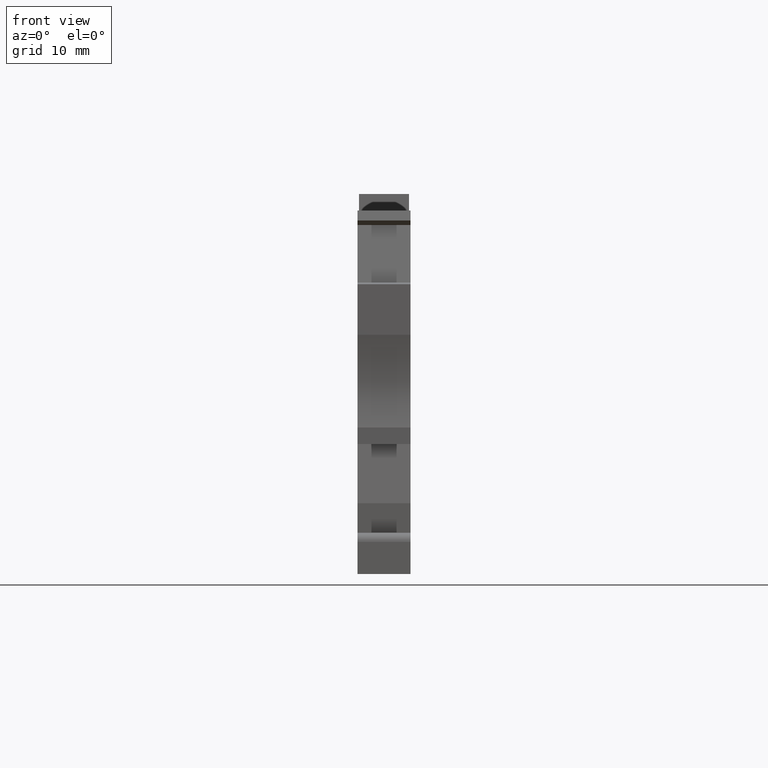
[diagram: clean part render]
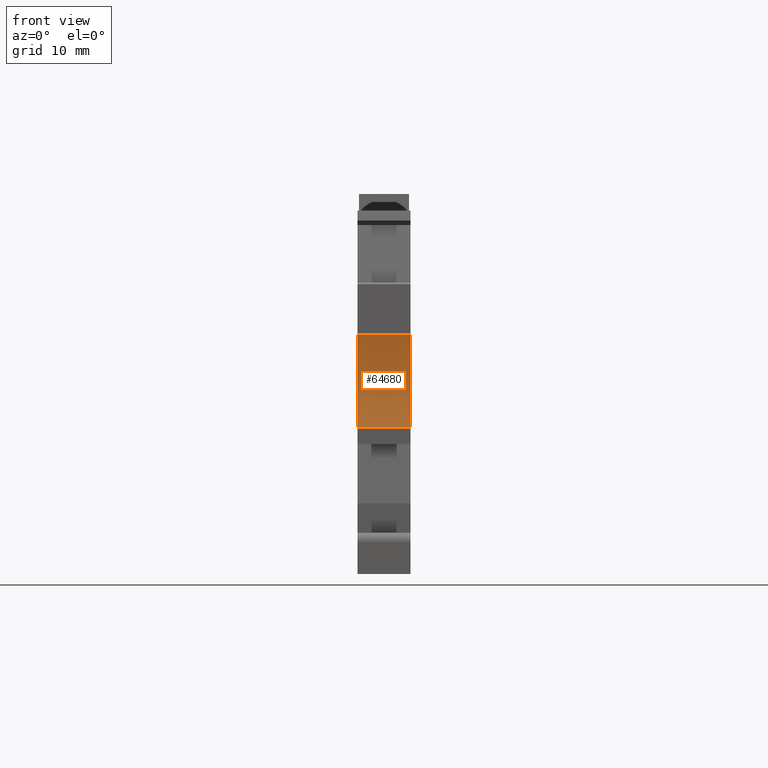
[diagram: same view with one face highlighted and labeled with its STEP entity id]
A machine part, front view. The second image highlights one B-rep face of the part: STEP entity #64680.
In plain terms, the highlighted cylindrical surface (partial cylindrical patch) has radius 15 mm, axis along (1, 0, 0).
Its self-contained STEP definition (entity closure, byte-faithful):
#8130=CARTESIAN_POINT('',(-22.3678327783245,-21.2000000000028,
53.6700000000021));
#8140=VERTEX_POINT('',#8130);
#8170=CARTESIAN_POINT('',(-22.3678327783245,-21.2000000000028,53.67));
#8180=DIRECTION('',(0.,0.,-1.));
#8190=VECTOR('',#8180,1.);
#8200=LINE('',#8170,#8190);
#8210=CARTESIAN_POINT('',(-22.3678327783245,-21.2000000000028,
48.5199999999973));
#8220=VERTEX_POINT('',#8210);
#8230=EDGE_CURVE('',#8140,#8220,#8200,.T.);
#22920=CARTESIAN_POINT('',(-22.3678327783245,-30.2000000000027,
53.669999999997));
#22930=VERTEX_POINT('',#22920);
#22960=CARTESIAN_POINT('',(-36.6769207995787,-25.7000000000028,
53.6699999999978));
#22970=DIRECTION('',(0.,0.,1.));
#22980=DIRECTION('',(1.,0.,0.));
#22990=AXIS2_PLACEMENT_3D('',#22960,#22970,#22980);
#23000=CIRCLE('',#22990,15.);
#23010=EDGE_CURVE('',#22930,#8140,#23000,.T.);
#53290=CARTESIAN_POINT('',(-36.6769207995787,-25.7000000000028,
48.5199999999973));
#53300=DIRECTION('',(0.,0.,1.));
#53310=DIRECTION('',(1.,0.,0.));
#53320=AXIS2_PLACEMENT_3D('',#53290,#53300,#53310);
#53330=CIRCLE('',#53320,15.);
#53340=CARTESIAN_POINT('',(-22.3678327783245,-30.2000000000028,
48.5199999999973));
#53350=VERTEX_POINT('',#53340);
#53360=EDGE_CURVE('',#53350,#8220,#53330,.T.);
#64060=CARTESIAN_POINT('',(-22.3678327783245,-30.2000000000027,53.67));
#64070=DIRECTION('',(0.,0.,-1.));
#64080=VECTOR('',#64070,1.);
#64090=LINE('',#64060,#64080);
#64100=EDGE_CURVE('',#22930,#53350,#64090,.T.);
#64570=CARTESIAN_POINT('',(-36.6769207995787,-25.7000000000028,53.67));
#64580=DIRECTION('',(0.,0.,1.));
#64590=DIRECTION('',(1.,0.,0.));
#64600=AXIS2_PLACEMENT_3D('',#64570,#64580,#64590);
#64610=CYLINDRICAL_SURFACE('',#64600,15.);
#64620=ORIENTED_EDGE('',*,*,#53360,.F.);
#64630=ORIENTED_EDGE('',*,*,#8230,.T.);
#64640=ORIENTED_EDGE('',*,*,#23010,.T.);
#64650=ORIENTED_EDGE('',*,*,#64100,.F.);
#64660=EDGE_LOOP('',(#64650,#64640,#64630,#64620));
#64670=FACE_OUTER_BOUND('',#64660,.T.);
#64680=ADVANCED_FACE('',(#64670),#64610,.F.);